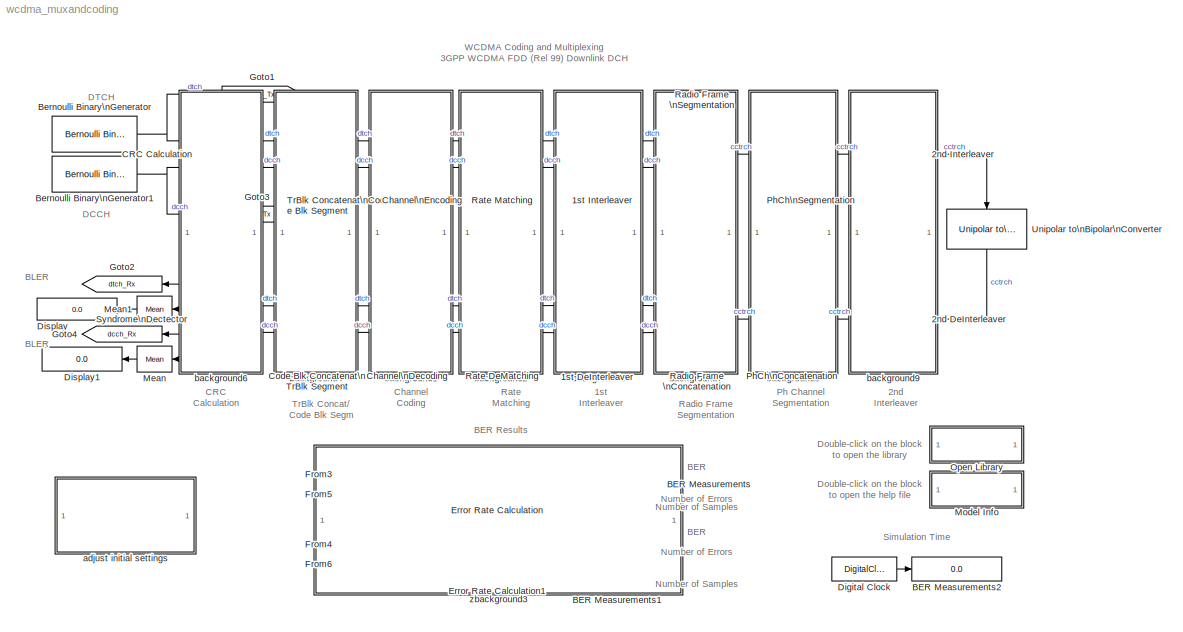
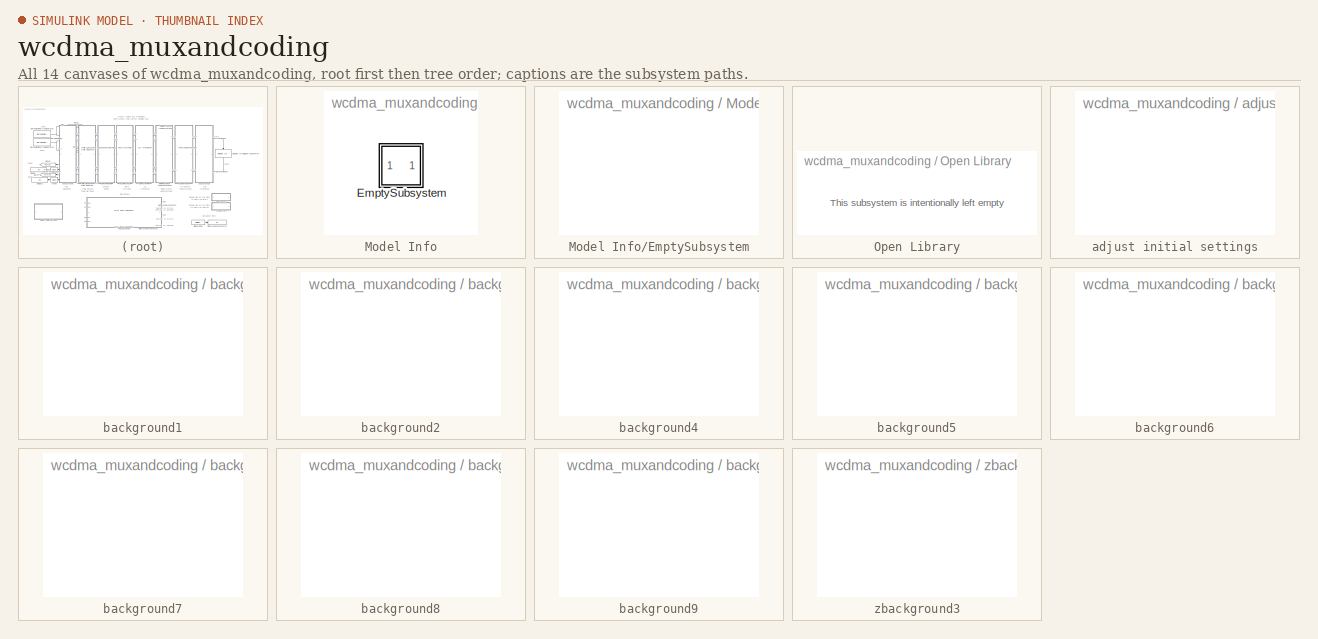
[diagram: thumbnail index - all 14 canvases of the model, root first then tree order]
MODEL wcdma_muxandcoding
KIND model
CONFIG PreLoadFcn = wcdma_loadinitmuxandcoding;
BLOCK [Reference] 1st DeInterleaver  REF=wcdma_lib/Wcdma Multiplexing\nand Channel Coding/1st DeInterleaver  (lib defined in mdl_415921f2943f)
  Ports = [2, 2]
  ShowPortLabels = on
  SourceBlock = wcdma_lib/Wcdma Multiplexing\nand Channel Coding/1st DeInterleaver
  SourceType = Wcdma 1st Interleaver
BLOCK [Reference] 1st Interleaver  REF=wcdma_lib/Wcdma Multiplexing\nand Channel Coding/1st Interleaver  (lib defined in mdl_415921f2943f)
  Ports = [2, 2]
  ShowPortLabels = on
  SourceBlock = wcdma_lib/Wcdma Multiplexing\nand Channel Coding/1st Interleaver
  SourceType = Wcdma 1st Interleaver
BLOCK [Reference] 2nd DeInterleaver  REF=wcdma_lib/Wcdma Multiplexing\nand Channel Coding/2nd DeInterleaver  (lib defined in mdl_415921f2943f)
  Ports = [1, 1]
  ShowPortLabels = on
  SourceBlock = wcdma_lib/Wcdma Multiplexing\nand Channel Coding/2nd DeInterleaver
  SourceType = 2nd DeInterleaver
BLOCK [Reference] 2nd Interleaver  REF=wcdma_lib/Wcdma Multiplexing\nand Channel Coding/2nd Interleaver  (lib defined in mdl_415921f2943f)
  Ports = [1, 1]
  ShowPortLabels = on
  SourceBlock = wcdma_lib/Wcdma Multiplexing\nand Channel Coding/2nd Interleaver
  SourceType = 2nd Interleaver
BLOCK [Display] BER Measurements
  Decimation = 1
  Ports = [1]
BLOCK [Display] BER Measurements1
  Decimation = 1
  Ports = [1]
BLOCK [Display] BER Measurements2
  Decimation = 1
  Ports = [1]
BLOCK [Reference] Bernoulli Binary\nGenerator  REF=commrandsrc2/Bernoulli Binary\nGenerator
  P = 0.5
  Ports = [0, 1]
  ShowPortLabels = on
  SourceBlock = commrandsrc2/Bernoulli Binary\nGenerator
  SourceType = Bernoulli Binary Generator
  Ts = (tti(1)*1e-3)/trBlkSetSize(1)
  frameBased = on
  orient = off
  sampPerFrame = trBlkSetSize(1)
  seed = [123456]
BLOCK [Reference] Bernoulli Binary\nGenerator1  REF=commrandsrc2/Bernoulli Binary\nGenerator
  P = 0.5
  Ports = [0, 1]
  ShowPortLabels = on
  SourceBlock = commrandsrc2/Bernoulli Binary\nGenerator
  SourceType = Bernoulli Binary Generator
  Ts = (tti(2)*1e-3)/trBlkSetSize(2)
  frameBased = on
  orient = off
  sampPerFrame = trBlkSetSize(2)
  seed = [654321]
BLOCK [Reference] CRC Calculation  REF=wcdma_lib/Wcdma Multiplexing\nand Channel Coding/CRC Calculation  (lib defined in mdl_415921f2943f)
  Ports = [2, 2]
  ShowPortLabels = on
  SourceBlock = wcdma_lib/Wcdma Multiplexing\nand Channel Coding/CRC Calculation
  SourceType = CRC Calculation
BLOCK [Reference] Channel\nDecoding  REF=wcdma_lib/Wcdma Multiplexing\nand Channel Coding/Channel\nDecoding  (lib defined in mdl_415921f2943f)
  Ports = [2, 2]
  ShowPortLabels = on
  SourceBlock = wcdma_lib/Wcdma Multiplexing\nand Channel Coding/Channel\nDecoding
  SourceType = Channel Decoding
BLOCK [Reference] Channel\nEncoding  REF=wcdma_lib/Wcdma Multiplexing\nand Channel Coding/Channel\nEncoding  (lib defined in mdl_415921f2943f)
  Ports = [2, 2]
  ShowPortLabels = on
  SourceBlock = wcdma_lib/Wcdma Multiplexing\nand Channel Coding/Channel\nEncoding
  SourceType = Channel Encoding
BLOCK [Reference] Code Blk Concatenat\nTrBlk Segment  REF=wcdma_lib/Wcdma Multiplexing\nand Channel Coding/Code Blk Concatenat\nTrBlk Segment  (lib defined in mdl_415921f2943f)
  Ports = [2, 2]
  ShowPortLabels = on
  SourceBlock = wcdma_lib/Wcdma Multiplexing\nand Channel Coding/Code Blk Concatenat\nTrBlk Segment
  SourceType = Code BlK Concatenation and TrBlk Segmentation
  crcSize = crcSize
  trBlkSetSize = trBlkSetSize
  trBlkSize = trBlkSize
BLOCK [DigitalClock] Digital Clock
  SampleTime = 0.01
BLOCK [Display] Display
  Decimation = 1
  Ports = [1]
BLOCK [Display] Display1
  Decimation = 1
  Ports = [1]
BLOCK [Reference] Error Rate Calculation  REF=commsink2/Error Rate\nCalculation
  N = totalBitsDelay(1)
  PMode = Port
  Ports = [2, 1]
  RsMode2 = off
  SourceBlock = commsink2/Error Rate\nCalculation
  SourceType = Error Rate Calculation
  WsName = ErrorVec
  cp_mode = Entire frame
  maxBits = 1e6
  numErr = 100
  st_delay = 0
  stop = off
  subframe = []
BLOCK [Reference] Error Rate Calculation1  REF=commsink2/Error Rate\nCalculation
  N = totalBitsDelay(2)
  PMode = Port
  Ports = [2, 1]
  RsMode2 = off
  SourceBlock = commsink2/Error Rate\nCalculation
  SourceType = Error Rate Calculation
  WsName = ErrorVec
  cp_mode = Entire frame
  maxBits = 1e6
  numErr = 100
  st_delay = 0
  stop = off
  subframe = []
BLOCK [From] From3
  CloseFcn = tagdialog Close
  DialogController = Simulink.DDGSource
  GotoTag = dtch_Tx
BLOCK [From] From4
  CloseFcn = tagdialog Close
  DialogController = Simulink.DDGSource
  GotoTag = dcch_Tx
BLOCK [From] From5
  CloseFcn = tagdialog Close
  DialogController = Simulink.DDGSource
  GotoTag = dtch_Rx
BLOCK [From] From6
  CloseFcn = tagdialog Close
  DialogController = Simulink.DDGSource
  GotoTag = dcch_Rx
BLOCK [Goto] Goto1
  DialogController = Simulink.DDGSource
  GotoTag = dtch_Tx
  TagVisibility = global
BLOCK [Goto] Goto2
  DialogController = Simulink.DDGSource
  GotoTag = dtch_Rx
  TagVisibility = global
BLOCK [Goto] Goto3
  DialogController = Simulink.DDGSource
  GotoTag = dcch_Tx
  TagVisibility = global
BLOCK [Goto] Goto4
  DialogController = Simulink.DDGSource
  GotoTag = dcch_Rx
  TagVisibility = global
BLOCK [Reference] Mean  REF=dspstat3/Mean
  DialogController = dspDDGCreate
  DialogControllerArgs = DataTag0
  Ports = [1, 1]
  SourceBlock = dspstat3/Mean
  SourceType = Mean
  accumFracLength = 30
  accumMode = Same as input
  accumWordLength = 32
  additionalParams = off
  allowOverrides = on
  outputFracLength = 30
  outputMode = Same as accumulator
  outputWordLength = 32
  overflowMode = off
  reset_popup = None
  roundingMode = Floor
  run = on
BLOCK [Reference] Mean1  REF=dspstat3/Mean
  DialogController = dspDDGCreate
  DialogControllerArgs = DataTag1
  Ports = [1, 1]
  SourceBlock = dspstat3/Mean
  SourceType = Mean
  accumFracLength = 30
  accumMode = Same as input
  accumWordLength = 32
  additionalParams = off
  allowOverrides = on
  outputFracLength = 30
  outputMode = Same as accumulator
  outputWordLength = 32
  overflowMode = off
  reset_popup = None
  roundingMode = Floor
  run = on
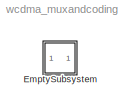
BLOCK [SubSystem] Model Info
  CopyFcn = slcm CopyBlock;
  DeleteFcn = slcm Cancel;
  InitFcn = slcm('UpdateAllCMBlocksInThisModelInit')
  LoadFcn = slcm LoadBlock;
  MaskCallbackString = ||||||||||||||||||||||||||||||
  MaskDescription = This block allows revision control information to be displayed within the model.
  MaskDisplay = text(str2num(LeftAlignmentValue), 0.5, MaskDisplayString, 'HorizontalAlignment', HorizontalTextAlignment)\n
  MaskEnableString = on,on,on,on,on,on,on,on,on,on,on,on,on,on,on,on,on,on,on,on,on,on,on,on,on,on,on,on,on,on,on
  MaskIconFrame = on
  MaskIconOpaque = on
  MaskIconRotate = none
  MaskIconUnits = normalized
  MaskPromptString = InitialSaveTempField|InitialBlockCM|BlockCM|Frame|SaveTempField|DisplayStringWithTags|MaskDisplayString|HorizontalTextAlignment|LeftAlignmentValue|SourceBlockDiagram|TagMaxNumber|CMTag1|CMTag2|CMTag3|CMTag4|CMTag5|CMTag6|CMTag7|CMTag8|CMTag9|CMTag10|CMTag11|CMTag12|CMTag13|CMTag14|CMTag15|CMTag16|CMTag17|CMTag18|CMTag19|CMTag20
  MaskSelfModifiable = on
  MaskStyleString = edit,edit,edit,edit,edit,edit,edit,edit,edit,edit,edit,edit,edit,edit,edit,edit,edit,edit,edit,edit,edit,edit,edit,edit,edit,edit,edit,edit,edit,edit,edit
  MaskTabNameString = ,,,,,,,,,,,,,,,,,,,,,,,,,,,,,,
  MaskToolTipString = on,on,on,on,on,on,on,on,on,on,on,on,on,on,on,on,on,on,on,on,on,on,on,on,on,on,on,on,on,on,on
  MaskTunableValueString = on,on,on,on,on,on,on,on,on,on,on,on,on,on,on,on,on,on,on,on,on,on,on,on,on,on,on,on,on,on,on
  MaskType = CMBlock
  MaskValueString = |none|none|on||Info|Info|Center|0.5|wcdma_muxandcoding|20||||||||||||||||||||
  MaskVarAliasString = ,,,,,,,,,,,,,,,,,,,,,,,,,,,,,,
  MaskVariables = InitialSaveTempField=&1;InitialBlockCM=&2;BlockCM=&3;Frame=&4;SaveTempField=&5;DisplayStringWithTags=&6;MaskDisplayString=&7;HorizontalTextAlignment=&8;LeftAlignmentValue=&9;SourceBlockDiagram=&10;TagMaxNumber=@11;CMTag1=&12;CMTag2=&13;CMTag3=&14;CMTag4=&15;CMTag5=&16;CMTag6=&17;CMTag7=&18;CMTag8=&19;CMTag9=&20;CMTag10=&21;CMTag11=&22;CMTag12=&23;CMTag13=&24;CMTag14=&25;CMTag15=&26;CMTag16=&27;CMT...<+45ch>
  MaskVisibilityString = off,off,off,off,off,off,off,off,off,off,off,off,off,off,off,off,off,off,off,off,off,off,off,off,off,off,off,off,off,off,off
  MinAlgLoopOccurrences = off
  NameChangeFcn = slcm Rename;
  OpenFcn = commdemohelp;
  Ports = []
  PostSaveFcn = slcm('UpdateAllCMBlocksInThisModel')
  PropExecContextAcrossSSBoundary = on
  RTWSystemCode = Auto
  TreatAsAtomicUnit = off
BLOCK [SubSystem] Model Info/EmptySubsystem
  MinAlgLoopOccurrences = off
  Ports = []
  PropExecContextAcrossSSBoundary = on
  RTWSystemCode = Auto
  TreatAsAtomicUnit = off
BLOCK [SubSystem] Open Library
  MaskDisplay = disp('WCDMA\\nLibrary')
  MaskIconFrame = on
  MaskIconOpaque = on
  MaskIconRotate = none
  MaskIconUnits = autoscale
  MinAlgLoopOccurrences = off
  OpenFcn = open('wcdma_lib.mdl');
  Ports = []
  PropExecContextAcrossSSBoundary = on
  RTWSystemCode = Auto
  ShowPortLabels = off
  TreatAsAtomicUnit = off
BLOCK [Reference] PhCh\nConcatenation  REF=wcdma_lib/Wcdma Multiplexing\nand Channel Coding/PhCh\nConcatenation  (lib defined in mdl_415921f2943f)
  Ports = [1, 1]
  ShowPortLabels = on
  SourceBlock = wcdma_lib/Wcdma Multiplexing\nand Channel Coding/PhCh\nConcatenation
  SourceType = PhCh Concatenation
BLOCK [Reference] PhCh\nSegmentation  REF=wcdma_lib/Wcdma Multiplexing\nand Channel Coding/PhCh\nSegmentation  (lib defined in mdl_415921f2943f)
  Ports = [1, 1]
  ShowPortLabels = on
  SourceBlock = wcdma_lib/Wcdma Multiplexing\nand Channel Coding/PhCh\nSegmentation
  SourceType = PhCh Segmentation
BLOCK [Reference] Radio Frame \nConcatenation  REF=wcdma_lib/Wcdma Multiplexing\nand Channel Coding/Radio Frame \nConcatenation  (lib defined in mdl_415921f2943f)
  Ports = [1, 2]
  ShowPortLabels = on
  SourceBlock = wcdma_lib/Wcdma Multiplexing\nand Channel Coding/Radio Frame \nConcatenation
  SourceType = Radio Frame Concatenation
  checkDelay = off
  numBits = numBitsFirstInt
  tti = tti
BLOCK [Reference] Radio Frame \nSegmentation  REF=wcdma_lib/Wcdma Multiplexing\nand Channel Coding/Radio Frame \nSegmentation  (lib defined in mdl_415921f2943f)
  Ports = [2, 1]
  ShowPortLabels = on
  SourceBlock = wcdma_lib/Wcdma Multiplexing\nand Channel Coding/Radio Frame \nSegmentation
  SourceType = Radio Frame Segmentation
BLOCK [Reference] Rate DeMatching  REF=wcdma_lib/Wcdma Multiplexing\nand Channel Coding/Rate DeMatching  (lib defined in mdl_415921f2943f)
  Ports = [2, 2]
  ShowPortLabels = on
  SourceBlock = wcdma_lib/Wcdma Multiplexing\nand Channel Coding/Rate DeMatching
  SourceType = Rate DeMatching
BLOCK [Reference] Rate Matching  REF=wcdma_lib/Wcdma Multiplexing\nand Channel Coding/Rate Matching  (lib defined in mdl_415921f2943f)
  Ports = [2, 2]
  ShowPortLabels = on
  SourceBlock = wcdma_lib/Wcdma Multiplexing\nand Channel Coding/Rate Matching
  SourceType = Rate Matching
BLOCK [Reference] Syndrome\nDectector  REF=wcdma_lib/Wcdma Multiplexing\nand Channel Coding/Syndrome\nDectector  (lib defined in mdl_415921f2943f)
  Ports = [2, 4]
  ShowPortLabels = on
  SourceBlock = wcdma_lib/Wcdma Multiplexing\nand Channel Coding/Syndrome\nDectector
  SourceType = Syndrome Detector
BLOCK [Reference] TrBlk Concatenat\nCode Blk Segment  REF=wcdma_lib/Wcdma Multiplexing\nand Channel Coding/TrBlk Concatenat\nCode Blk Segment  (lib defined in mdl_415921f2943f)
  Ports = [2, 2]
  ShowPortLabels = on
  SourceBlock = wcdma_lib/Wcdma Multiplexing\nand Channel Coding/TrBlk Concatenat\nCode Blk Segment
  SourceType = TrBlk Concatenation and Code Blk Segmentation
  numBitsCodeWord = numBitsCodeWord
  numBitsTrCh = numBitsTrCh
  numPadBits = numPadBits
BLOCK [Reference] Unipolar to\nBipolar\nConverter  REF=commutil2/Unipolar to\nBipolar\nConverter
  M = 2
  Ports = [1, 1]
  ShowPortLabels = on
  SourceBlock = commutil2/Unipolar to\nBipolar\nConverter
  SourceType = Unipolar to Bipolar Converter
  polarity = Negative
BLOCK [SubSystem] adjust initial settings
  MaskCallbackString = ||||||||
  MaskDescription = All the parameters on the mask must be specified as a vector where the k-th element corresponds to the settings for the k-th Transport Channel.
  MaskDisplay = disp('Wcdma Demo:\\nInitial Settings');
  MaskEnableString = on,on,on,on,on,on,on,on,on
  MaskIconFrame = on
  MaskIconOpaque = on
  MaskIconRotate = none
  MaskIconUnits = autoscale
  MaskInitialization = numTrBlks = trBlkSetSize./trBlkSize;\n\n% Assign Variables to Workspace\nassignin('base','trBlkSize',trBlkSize);\nassignin('base','trBlkSetSize',trBlkSetSize);\nassignin('base','numTrBlks',numTrBlks);\nassignin('base','tti',tti);\nassignin('base','crcSize',crcSize);\nassignin('base','errorCorr',errorCorr);\nassignin('base','RMAttribute',RMAttribute);\nassignin('base','posTrCh',posTrCh);\nassignin(...<+1291ch>
  MaskPromptString = Transport Block Set Size:|Transport Block Size:|TTI (in ms):|CRC Size {24, 16, 12, 8, 0}:|Type of Error Protection {None=0, Conv 1/2=1, Conv 1/3=2, Turbo=3}:|Rate Matching Attribute:|Position of TrCH in Radio Frame {Fixed=0, Flexible=1}:|Number of PhCH:|Slot Format (0..16):
  MaskStyleString = edit,edit,edit,edit,edit,edit,edit,edit,edit
  MaskTabNameString = ,,,,,,,,
  MaskToolTipString = on,on,on,on,on,on,on,on,on
  MaskTunableValueString = off,off,off,off,off,off,off,off,off
  MaskType = Wcdma Initial Settings Demo
  MaskValueString = [732 300]|[244 100]|[20 40]|[16 12]|[2 2]|[256 256]|0|1|15
  MaskVarAliasString = ,,,,,,,,
  MaskVariables = trBlkSetSize=@1;trBlkSize=@2;tti=@3;crcSize=@4;errorCorr=@5;RMAttribute=@6;posTrCh=@7;numPhCH=@8;slotFormat=@9;
  MaskVisibilityString = on,on,on,on,on,on,on,on,on
  MinAlgLoopOccurrences = off
  Ports = []
  PropExecContextAcrossSSBoundary = on
  RTWSystemCode = Auto
  TreatAsAtomicUnit = off
BLOCK [SubSystem] background1
  MaskDisplay = disp('')
  MaskIconFrame = on
  MaskIconOpaque = on
  MaskIconRotate = none
  MaskIconUnits = autoscale
  MinAlgLoopOccurrences = off
  Ports = []
  PropExecContextAcrossSSBoundary = on
  RTWSystemCode = Auto
  TreatAsAtomicUnit = off
BLOCK [SubSystem] background2
  MaskDisplay = disp('')
  MaskIconFrame = on
  MaskIconOpaque = on
  MaskIconRotate = none
  MaskIconUnits = autoscale
  MinAlgLoopOccurrences = off
  Ports = []
  PropExecContextAcrossSSBoundary = on
  RTWSystemCode = Auto
  TreatAsAtomicUnit = off
BLOCK [SubSystem] background4
  MaskDisplay = disp('')
  MaskIconFrame = on
  MaskIconOpaque = on
  MaskIconRotate = none
  MaskIconUnits = autoscale
  MinAlgLoopOccurrences = off
  Ports = []
  PropExecContextAcrossSSBoundary = on
  RTWSystemCode = Auto
  TreatAsAtomicUnit = off
BLOCK [SubSystem] background5
  MaskDisplay = disp('')
  MaskIconFrame = on
  MaskIconOpaque = on
  MaskIconRotate = none
  MaskIconUnits = autoscale
  MinAlgLoopOccurrences = off
  Ports = []
  PropExecContextAcrossSSBoundary = on
  RTWSystemCode = Auto
  TreatAsAtomicUnit = off
BLOCK [SubSystem] background6
  MaskDisplay = disp('')
  MaskIconFrame = on
  MaskIconOpaque = on
  MaskIconRotate = none
  MaskIconUnits = autoscale
  MinAlgLoopOccurrences = off
  Ports = []
  PropExecContextAcrossSSBoundary = on
  RTWSystemCode = Auto
  TreatAsAtomicUnit = off
BLOCK [SubSystem] background7
  MaskDisplay = disp('')
  MaskIconFrame = on
  MaskIconOpaque = on
  MaskIconRotate = none
  MaskIconUnits = autoscale
  MinAlgLoopOccurrences = off
  Ports = []
  PropExecContextAcrossSSBoundary = on
  RTWSystemCode = Auto
  TreatAsAtomicUnit = off
BLOCK [SubSystem] background8
  MaskDisplay = disp('')
  MaskIconFrame = on
  MaskIconOpaque = on
  MaskIconRotate = none
  MaskIconUnits = autoscale
  MinAlgLoopOccurrences = off
  Ports = []
  PropExecContextAcrossSSBoundary = on
  RTWSystemCode = Auto
  TreatAsAtomicUnit = off
BLOCK [SubSystem] background9
  MaskDisplay = disp('')
  MaskIconFrame = on
  MaskIconOpaque = on
  MaskIconRotate = none
  MaskIconUnits = autoscale
  MinAlgLoopOccurrences = off
  Ports = []
  PropExecContextAcrossSSBoundary = on
  RTWSystemCode = Auto
  TreatAsAtomicUnit = off
BLOCK [SubSystem] zbackground3
  MaskDisplay = disp('')
  MaskIconFrame = on
  MaskIconOpaque = on
  MaskIconRotate = none
  MaskIconUnits = autoscale
  MinAlgLoopOccurrences = off
  Ports = []
  PropExecContextAcrossSSBoundary = on
  RTWSystemCode = Auto
  TreatAsAtomicUnit = off
ANNOTATION (root): 1st\nInterleaver
ANNOTATION (root): 2nd\nInterleaver
ANNOTATION (root): BER
ANNOTATION (root): BER Results
ANNOTATION (root): BLER
ANNOTATION (root): CRC\nCalculation
ANNOTATION (root): Channel\nCoding
ANNOTATION (root): DCCH
ANNOTATION (root): DTCH
ANNOTATION (root): Double-click on the block\nto open the help file
ANNOTATION (root): Double-click on the block\nto open the library
ANNOTATION (root): Number of Errors
ANNOTATION (root): Number of Samples
ANNOTATION (root): Ph Channel\nSegmentation
ANNOTATION (root): Radio Frame\nSegmentation
ANNOTATION (root): Rate\nMatching
ANNOTATION (root): Simulation Time
ANNOTATION (root): TrBlk Concat/\nCode Blk Segm
ANNOTATION (root): WCDMA Coding and Multiplexing\n3GPP WCDMA FDD (Rel 99) Downlink DCH
ANNOTATION Open Library: This subsystem is intentionally left empty
LINE 1st DeInterleaver:1 -> Rate DeMatching:1
LINE 1st DeInterleaver:2 -> Rate DeMatching:2
LINE 1st Interleaver:1 -> Radio Frame \nSegmentation:1
LINE 1st Interleaver:2 -> Radio Frame \nSegmentation:2
LINE 2nd DeInterleaver:1 -> PhCh\nConcatenation:1
LINE 2nd Interleaver:1 -> Unipolar to\nBipolar\nConverter:1
NET Bernoulli Binary\nGenerator1:1 -> CRC Calculation:2, Goto3:1
NET Bernoulli Binary\nGenerator:1 -> CRC Calculation:1, Goto1:1
LINE CRC Calculation:1 -> TrBlk Concatenat\nCode Blk Segment:1
LINE CRC Calculation:2 -> TrBlk Concatenat\nCode Blk Segment:2
LINE Channel\nDecoding:1 -> Code Blk Concatenat\nTrBlk Segment:1
LINE Channel\nDecoding:2 -> Code Blk Concatenat\nTrBlk Segment:2
LINE Channel\nEncoding:1 -> Rate Matching:1
LINE Channel\nEncoding:2 -> Rate Matching:2
LINE Code Blk Concatenat\nTrBlk Segment:1 -> Syndrome\nDectector:1
LINE Code Blk Concatenat\nTrBlk Segment:2 -> Syndrome\nDectector:2
LINE Digital Clock:1 -> BER Measurements2:1
LINE Error Rate Calculation1:1 -> BER Measurements1:1
LINE Error Rate Calculation:1 -> BER Measurements:1
LINE From3:1 -> Error Rate Calculation:1
LINE From4:1 -> Error Rate Calculation1:1
LINE From5:1 -> Error Rate Calculation:2
LINE From6:1 -> Error Rate Calculation1:2
LINE Mean1:1 -> Display:1
LINE Mean:1 -> Display1:1
LINE PhCh\nConcatenation:1 -> Radio Frame \nConcatenation:1
LINE PhCh\nSegmentation:1 -> 2nd Interleaver:1
LINE Radio Frame \nConcatenation:1 -> 1st DeInterleaver:1
LINE Radio Frame \nConcatenation:2 -> 1st DeInterleaver:2
LINE Radio Frame \nSegmentation:1 -> PhCh\nSegmentation:1
LINE Rate DeMatching:1 -> Channel\nDecoding:1
LINE Rate DeMatching:2 -> Channel\nDecoding:2
LINE Rate Matching:1 -> 1st Interleaver:1
LINE Rate Matching:2 -> 1st Interleaver:2
LINE Syndrome\nDectector:1 -> Goto2:1
LINE Syndrome\nDectector:2 -> Mean1:1
LINE Syndrome\nDectector:3 -> Goto4:1
LINE Syndrome\nDectector:4 -> Mean:1
LINE TrBlk Concatenat\nCode Blk Segment:1 -> Channel\nEncoding:1
LINE TrBlk Concatenat\nCode Blk Segment:2 -> Channel\nEncoding:2
LINE Unipolar to\nBipolar\nConverter:1 -> 2nd DeInterleaver:1
note: NET lines group one-source signal fan-out (src -> all destinations, sorted); 1:1 wires keep LINE
